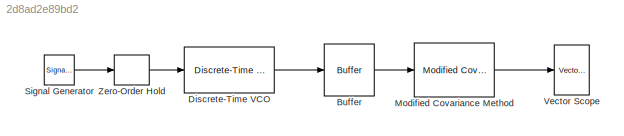
MODEL slx_2d8ad2e89bd2
KIND model
CONFIG AbsTol = auto
CONFIG EnableMultiTasking = off
CONFIG FixedStep = auto
CONFIG MaxStep = auto
CONFIG MinStep = auto
CONFIG RelTol = 1e-3
CONFIG SampleTimeConstraint = Unconstrained
CONFIG Solver = VariableStepAuto
CONFIG SolverName = VariableStepAuto
CONFIG StartTime = 0.0
CONFIG StopTime = 20
BLOCK [Buffer] Buffer
  N = 1024
  OutputFrames = off
BLOCK [Reference] Discrete-Time VCO  REF=commsynccomp2/Discrete-Time
VCO
  Ports = [1, 1]
  SourceBlock = commsynccomp2/Discrete-Time\nVCO
  SourceProductBaseCode = CM
  SourceProductName = Communications System Toolbox
  SourceType = Discrete-Time VCO
BLOCK [Reference] Modified Covariance Method  REF=dspspect3/Modified Covariance
Method
  Ports = [1, 1]
  SourceBlock = dspspect3/Modified Covariance\nMethod
  SourceProductBaseCode = DS
  SourceProductName = DSP System Toolbox
  SourceType = Modified Covariance Method
BLOCK [SignalGenerator] Signal Generator
  Ports = [0, 1]
  Units = rad/sec
BLOCK [Reference] Vector Scope  REF=dspsnks4/Vector
Scope
  Ports = [1]
  SourceBlock = dspsnks4/Vector\nScope
  SourceProductBaseCode = DS
  SourceProductName = DSP System Toolbox
  SourceType = Vector Scope
BLOCK [ZeroOrderHold] Zero-Order Hold
  SampleTime = 8000
LINE Buffer:1 -> Modified Covariance Method:1
LINE Discrete-Time VCO:1 -> Buffer:1
LINE Modified Covariance Method:1 -> Vector Scope:1
LINE Signal Generator:1 -> Zero-Order Hold:1
LINE Zero-Order Hold:1 -> Discrete-Time VCO:1
